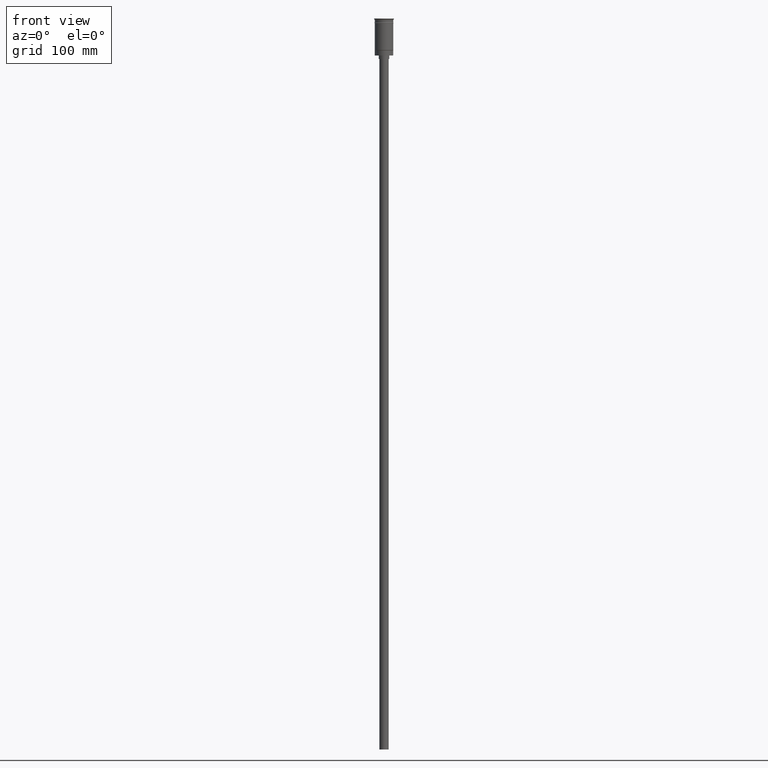
[diagram: clean part render]
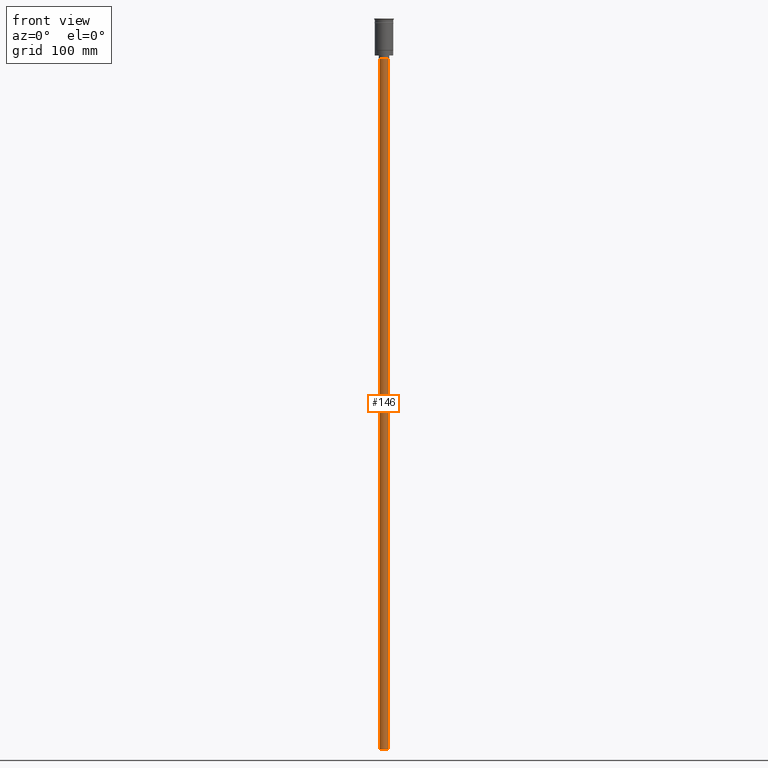
[diagram: same view with one face highlighted and labeled with its STEP entity id]
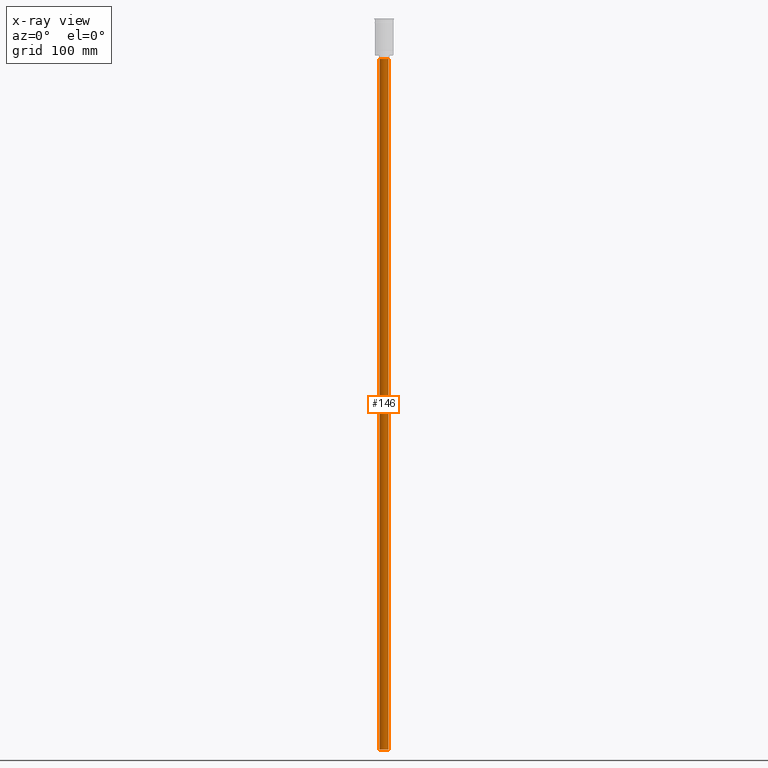
[diagram: x-ray of the same camera — body ghosted, the highlighted face saturated]
A machine part, front view. The second image highlights one B-rep face of the part: STEP entity #146.
The next image is the same camera in x-ray: the body ghosted, the highlighted face saturated — about 0% of this face is hidden behind the body in this view.
In plain terms, the highlighted cylindrical surface (edge-blend (fillet) strip) has radius 4 mm, axis along (-0, -0, 1).
Its self-contained STEP definition (entity closure, byte-faithful):
#34 = ORIENTED_EDGE ( 'NONE', *, *, #919, .F. ) ;
#57 = EDGE_CURVE ( 'NONE', #1248, #1203, #1597, .T. ) ;
#86 = CARTESIAN_POINT ( 'NONE',  ( -4.000000000000000000, 4.898587196589412829E-16, -632.0000000000000000 ) ) ;
#90 = CARTESIAN_POINT ( 'NONE',  ( 4.000000000000000000, 0.000000000000000000, -632.0000000000000000 ) ) ;
#93 = DIRECTION ( 'NONE',  ( -0.000000000000000000, -0.000000000000000000, 1.000000000000000000 ) ) ;
#111 = DIRECTION ( 'NONE',  ( -1.000000000000000000, 0.000000000000000000, 0.000000000000000000 ) ) ;
#146 = ADVANCED_FACE ( 'NONE', ( #1550 ), #285, .T. ) ;
#151 = AXIS2_PLACEMENT_3D ( 'NONE', #713, #490, #1590 ) ;
#180 = DIRECTION ( 'NONE',  ( 1.000000000000000000, 0.000000000000000000, 0.000000000000000000 ) ) ;
#276 = CARTESIAN_POINT ( 'NONE',  ( 0.000000000000000000, 0.000000000000000000, -35.00000000000000000 ) ) ;
#285 = CYLINDRICAL_SURFACE ( 'NONE', #1054, 4.000000000000000000 ) ;
#377 = AXIS2_PLACEMENT_3D ( 'NONE', #276, #1220, #111 ) ;
#432 = VECTOR ( 'NONE', #93, 1000.000000000000000 ) ;
#458 = EDGE_CURVE ( 'NONE', #1348, #1203, #831, .T. ) ;
#490 = DIRECTION ( 'NONE',  ( 0.000000000000000000, 0.000000000000000000, -1.000000000000000000 ) ) ;
#554 = DIRECTION ( 'NONE',  ( -0.000000000000000000, -0.000000000000000000, 1.000000000000000000 ) ) ;
#602 = CARTESIAN_POINT ( 'NONE',  ( 4.000000000000000000, 0.000000000000000000, -632.0000000000000000 ) ) ;
#693 = ORIENTED_EDGE ( 'NONE', *, *, #834, .T. ) ;
#713 = CARTESIAN_POINT ( 'NONE',  ( 0.000000000000000000, 0.000000000000000000, -632.0000000000000000 ) ) ;
#784 = CARTESIAN_POINT ( 'NONE',  ( 4.000000000000000000, 0.000000000000000000, -35.00000000000000000 ) ) ;
#831 = LINE ( 'NONE', #86, #432 ) ;
#834 = EDGE_CURVE ( 'NONE', #1039, #1248, #1426, .T. ) ;
#870 = VECTOR ( 'NONE', #924, 1000.000000000000000 ) ;
#919 = EDGE_CURVE ( 'NONE', #1039, #1348, #1026, .T. ) ;
#924 = DIRECTION ( 'NONE',  ( -0.000000000000000000, -0.000000000000000000, 1.000000000000000000 ) ) ;
#994 = ORIENTED_EDGE ( 'NONE', *, *, #57, .T. ) ;
#1011 = CARTESIAN_POINT ( 'NONE',  ( -4.000000000000000000, 4.898587196589412829E-16, -35.00000000000000000 ) ) ;
#1026 = CIRCLE ( 'NONE', #151, 4.000000000000000000 ) ;
#1039 = VERTEX_POINT ( 'NONE', #602 ) ;
#1054 = AXIS2_PLACEMENT_3D ( 'NONE', #1286, #554, #180 ) ;
#1067 = ORIENTED_EDGE ( 'NONE', *, *, #458, .F. ) ;
#1203 = VERTEX_POINT ( 'NONE', #1011 ) ;
#1217 = EDGE_LOOP ( 'NONE', ( #1067, #34, #693, #994 ) ) ;
#1220 = DIRECTION ( 'NONE',  ( 0.000000000000000000, 0.000000000000000000, -1.000000000000000000 ) ) ;
#1248 = VERTEX_POINT ( 'NONE', #784 ) ;
#1270 = CARTESIAN_POINT ( 'NONE',  ( -4.000000000000000000, 4.898587196589412829E-16, -632.0000000000000000 ) ) ;
#1286 = CARTESIAN_POINT ( 'NONE',  ( 0.000000000000000000, 0.000000000000000000, -632.0000000000000000 ) ) ;
#1348 = VERTEX_POINT ( 'NONE', #1270 ) ;
#1426 = LINE ( 'NONE', #90, #870 ) ;
#1550 = FACE_OUTER_BOUND ( 'NONE', #1217, .T. ) ;
#1590 = DIRECTION ( 'NONE',  ( -1.000000000000000000, 0.000000000000000000, 0.000000000000000000 ) ) ;
#1597 = CIRCLE ( 'NONE', #377, 4.000000000000000000 ) ;